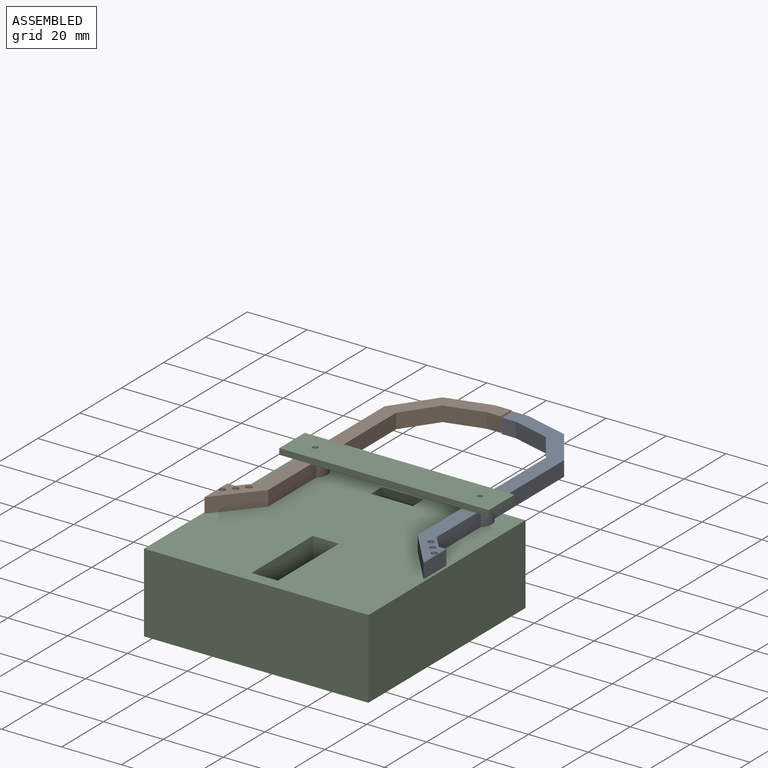
[diagram: assembled view]
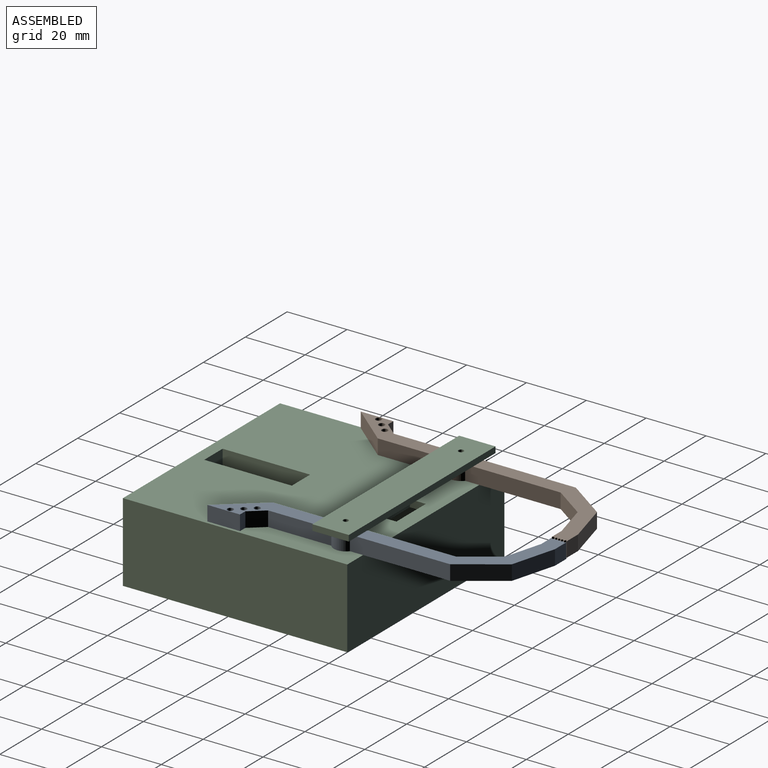
[diagram: assembled view, second angle]
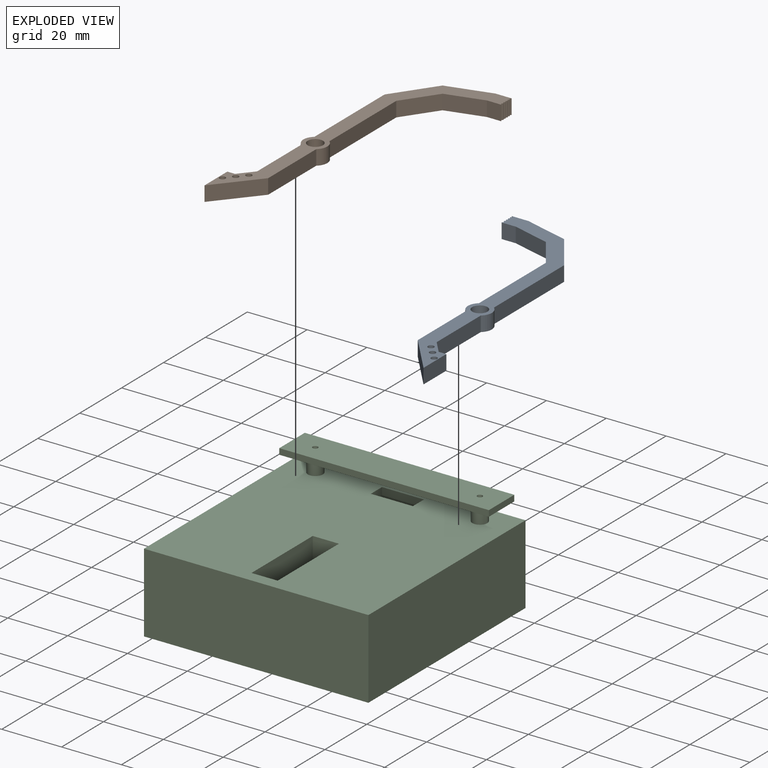
[diagram: exploded view]
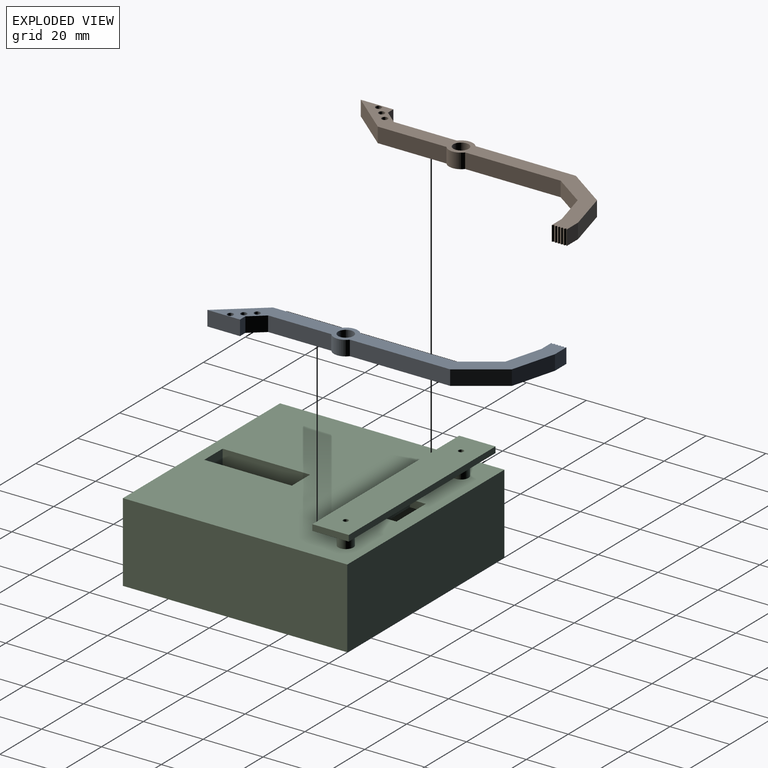
[diagram: exploded view, second angle]
ASSEMBLY  parts=3 mates=2
PART A: 38 faces, bbox 36.5x94.4x5 mm
  f0: plane 31.93x5mm, normal (-1,0,0), area 159.7mm2, adj f1,f34,f36,f37
  f1: cylinder r=4mm len=6.25mm, axis (0,0,-1), area 35.8mm2, adj f0,f2,f36,f37
  f2: plane 22.95x5mm, normal (-1,0,0), area 114.8mm2, adj f1,f3,f36,f37
  f3: plane 13.82x11.6mm, normal (-0.77,-0.64,0), area 90.2mm2, adj f2,f4,f36,f37
  f4: plane 10.9x5mm, normal (1,0,0), area 54.5mm2, adj f3,f5,f36,f37
  f5: plane 5x2.56mm, normal (0,1,0), area 12.8mm2, adj f4,f6,f36,f37
  f6: plane 5x4.79mm, normal (0.76,0.64,0), area 31.3mm2, adj f5,f7,f36,f37
  f7: plane 21.09x5mm, normal (1,0,0), area 105.4mm2, adj f6,f8,f36,f37
  f8: cylinder r=4mm len=6.25mm, axis (0,0,-1), area 35.8mm2, adj f7,f9,f36,f37
  f9: plane 33.51x5mm, normal (1,0,0), area 167.5mm2, adj f8,f10,f36,f37
  f10: plane 13.85x9.68mm, normal (0.82,0.57,0), area 84.5mm2, adj f9,f11,f36,f37
  f11: plane 14.82x5mm, normal (0.26,0.96,0), area 76.8mm2, adj f10,f12,f36,f37
  f12: plane 5.42x5mm, normal (0,1,0), area 27.1mm2, adj f11,f13,f36,f37
  f13: plane 5x0.07mm, normal (-1,0,0), area 0.3mm2, adj f12,f14,f36,f37
  f14: plane 5x0.49mm, normal (-0.65,-0.76,0), area 3.2mm2, adj f13,f15,f36,f37
  f15: plane 5x0.49mm, normal (-0.54,0.84,0), area 2.9mm2, adj f14,f16,f36,f37
  f16: plane 5x0.17mm, normal (-1,0,0), area 0.9mm2, adj f15,f17,f36,f37
  f17: plane 5x0.57mm, normal (-0.84,-0.54,0), area 3.4mm2, adj f16,f18,f36,f37
  f18: plane 5x0.36mm, normal (-0.54,0.84,0), area 2.2mm2, adj f17,f19,f36,f37
  f19: plane 5x0.17mm, normal (-1,0,0), area 0.9mm2, adj f18,f20,f36,f37
  f20: plane 5x0.57mm, normal (-0.84,-0.54,0), area 3.4mm2, adj f19,f21,f36,f37
  f21: plane 5x0.36mm, normal (-0.54,0.84,0), area 2.2mm2, adj f20,f22,f36,f37
  f22: plane 5x0.17mm, normal (-1,0,0), area 0.9mm2, adj f21,f23,f36,f37
  f23: plane 5x0.57mm, normal (-0.84,-0.54,0), area 3.4mm2, adj f22,f24,f36,f37
  f24: plane 5x0.36mm, normal (-0.54,0.84,0), area 2.2mm2, adj f23,f25,f36,f37
  f25: plane 5x0.17mm, normal (-1,0,0), area 0.9mm2, adj f24,f26,f36,f37
  f26: plane 5x0.57mm, normal (-0.84,-0.54,0), area 3.4mm2, adj f25,f27,f36,f37
  f27: plane 5x0.44mm, normal (-0.77,0.64,0), area 2.8mm2, adj f26,f28,f36,f37
  f28: plane 5x0.09mm, normal (-1,0,0), area 0.5mm2, adj f27,f29,f36,f37
  f29: plane 5x4.76mm, normal (0,-1,0), area 23.8mm2, adj f28,f30,f36,f37
  f30: plane 12.43x5mm, normal (-0.26,-0.96,0), area 64.4mm2, adj f29,f34,f36,f37
  f31: cylinder r=1mm len=5mm, axis (0,0,-1), area 31.4mm2, adj f36,f37
  f32: cylinder r=2.56mm len=5.13mm, axis (0,0,-1), area 80.5mm2, adj f36,f37
  f33: cylinder r=1mm len=5mm, axis (0,0,-1), area 31.4mm2, adj f36,f37
  f34: plane 11.08x7.74mm, normal (-0.82,-0.57,0), area 67.6mm2, adj f0,f30,f36,f37
  f35: cylinder r=1mm len=5mm, axis (0,0,-1), area 31.4mm2, adj f36,f37
  f36: plane 94.41x36.52mm, normal (0,0,1), area 534.4mm2, adj f0,f1,f2,f3,f4,f5,f6,f7
  f37: plane 94.41x36.52mm, normal (0,0,-1), area 534.4mm2, adj f0,f1,f2,f3,f4,f5,f6,f7
PART B: 38 faces, bbox 36.5x94.4x5 mm
  f0: plane 13.85x9.68mm, normal (-0.82,0.57,0), area 84.5mm2, adj f1,f34,f36,f37
  f1: plane 33.51x5mm, normal (-1,0,0), area 167.5mm2, adj f0,f2,f36,f37
  f2: cylinder r=4mm len=6.25mm, axis (0,0,-1), area 35.8mm2, adj f1,f3,f36,f37
  f3: plane 21.09x5mm, normal (-1,0,0), area 105.4mm2, adj f2,f4,f36,f37
  f4: plane 5x4.79mm, normal (-0.76,0.64,0), area 31.3mm2, adj f3,f5,f36,f37
  f5: plane 5x2.56mm, normal (0,1,0), area 12.8mm2, adj f4,f6,f36,f37
  f6: plane 10.9x5mm, normal (-1,0,0), area 54.5mm2, adj f5,f7,f36,f37
  f7: plane 13.82x11.6mm, normal (0.77,-0.64,0), area 90.2mm2, adj f6,f8,f36,f37
  f8: plane 22.95x5mm, normal (1,0,0), area 114.8mm2, adj f7,f9,f36,f37
  f9: cylinder r=4mm len=6.25mm, axis (0,0,-1), area 35.8mm2, adj f8,f10,f36,f37
  f10: plane 31.93x5mm, normal (1,0,0), area 159.7mm2, adj f9,f11,f36,f37
  f11: plane 11.08x7.74mm, normal (0.82,-0.57,0), area 67.6mm2, adj f10,f12,f36,f37
  f12: plane 12.43x5mm, normal (0.26,-0.96,0), area 64.4mm2, adj f11,f13,f36,f37
  f13: plane 5x4.76mm, normal (0,-1,0), area 23.8mm2, adj f12,f14,f36,f37
  f14: plane 5x0.09mm, normal (1,0,0), area 0.5mm2, adj f13,f15,f36,f37
  f15: plane 5x0.44mm, normal (0.77,0.64,0), area 2.8mm2, adj f14,f16,f36,f37
  f16: plane 5x0.57mm, normal (0.84,-0.54,0), area 3.4mm2, adj f15,f17,f36,f37
  f17: plane 5x0.17mm, normal (1,0,0), area 0.9mm2, adj f16,f18,f36,f37
  f18: plane 5x0.36mm, normal (0.54,0.84,0), area 2.2mm2, adj f17,f19,f36,f37
  f19: plane 5x0.57mm, normal (0.84,-0.54,0), area 3.4mm2, adj f18,f20,f36,f37
  f20: plane 5x0.17mm, normal (1,0,0), area 0.9mm2, adj f19,f21,f36,f37
  f21: plane 5x0.36mm, normal (0.54,0.84,0), area 2.2mm2, adj f20,f22,f36,f37
  f22: plane 5x0.57mm, normal (0.84,-0.54,0), area 3.4mm2, adj f21,f23,f36,f37
  f23: plane 5x0.17mm, normal (1,0,0), area 0.9mm2, adj f22,f24,f36,f37
  f24: plane 5x0.36mm, normal (0.54,0.84,0), area 2.2mm2, adj f23,f25,f36,f37
  f25: plane 5x0.57mm, normal (0.84,-0.54,0), area 3.4mm2, adj f24,f26,f36,f37
  f26: plane 5x0.17mm, normal (1,0,0), area 0.9mm2, adj f25,f27,f36,f37
  f27: plane 5x0.49mm, normal (0.54,0.84,0), area 2.9mm2, adj f26,f28,f36,f37
  f28: plane 5x0.49mm, normal (0.65,-0.76,0), area 3.2mm2, adj f27,f29,f36,f37
  f29: plane 5x0.07mm, normal (1,0,0), area 0.3mm2, adj f28,f30,f36,f37
  f30: plane 5.42x5mm, normal (0,1,0), area 27.1mm2, adj f29,f34,f36,f37
  f31: cylinder r=1mm len=5mm, axis (0,0,-1), area 31.4mm2, adj f36,f37
  f32: cylinder r=1mm len=5mm, axis (0,0,-1), area 31.4mm2, adj f36,f37
  f33: cylinder r=1mm len=5mm, axis (0,0,-1), area 31.4mm2, adj f36,f37
  f34: plane 14.82x5mm, normal (-0.26,0.96,0), area 76.8mm2, adj f0,f30,f36,f37
  f35: cylinder r=2.56mm len=5.13mm, axis (0,0,-1), area 80.5mm2, adj f36,f37
  f36: plane 94.41x36.52mm, normal (0,0,1), area 534.4mm2, adj f0,f1,f2,f3,f4,f5,f6,f7
  f37: plane 94.41x36.52mm, normal (0,0,-1), area 534.4mm2, adj f0,f1,f2,f3,f4,f5,f6,f7
PART C: 47 faces, bbox 75x75x34 mm
  f0: plane 75x26.5mm, normal (0,1,0), area 1987.5mm2, adj f14,f18,f19,f38
  f1: plane 75x26.5mm, normal (0,-1,0), area 1987.5mm2, adj f14,f18,f19,f38
  f2: plane 15x0.5mm, normal (1,0,0), area 7.5mm2, adj f7,f10,f29,f38
  f3: plane 15x0.5mm, normal (1,0,0), area 7.5mm2, adj f4,f12,f33,f38
  f4: plane 60x15mm, normal (0,1,0), area 900mm2, adj f3,f6,f33,f38
  f5: plane 15x0.5mm, normal (-1,0,0), area 7.5mm2, adj f7,f10,f29,f38
  f6: plane 15x0.5mm, normal (-1,0,0), area 7.5mm2, adj f4,f8,f33,f38
  f7: plane 60x15mm, normal (0,-1,0), area 900mm2, adj f2,f5,f29,f38
  f8: plane 28.13x24mm, normal (0,1,0), area 328.1mm2, adj f6,f9,f13,f30,f33,f38
  f9: plane 70x24mm, normal (-1,0,0), area 1680mm2, adj f8,f10,f13,f38
  f10: plane 70x24mm, normal (0,-1,0), area 780mm2, adj f2,f5,f9,f11,f13,f29,f38
  f11: plane 70x24mm, normal (1,0,0), area 1680mm2, adj f10,f12,f13,f38
  f12: plane 28.13x24mm, normal (0,1,0), area 328.1mm2, adj f3,f11,f13,f31,f33,f38
  f13: plane 70x70mm, normal (0,0,-1), area 4363.3mm2, adj f8,f9,f10,f11,f12,f30,f31,f32
  f14: plane 75x75mm, normal (0,0,1), area 5255.1mm2, adj f0,f1,f15,f16,f17,f18,f19,f20
  f15: plane 29.25x11.5mm, normal (-1,0,0), area 315.8mm2, adj f14,f17,f20,f23,f24,f25,f26,f33
  f16: plane 29.25x11.5mm, normal (1,0,0), area 315.8mm2, adj f14,f17,f20,f23,f24,f25,f26,f33
  f17: plane 9x8.75mm, normal (0,-1,0), area 78.7mm2, adj f14,f15,f16,f24
  f18: plane 75x26.5mm, normal (1,0,0), area 1987.5mm2, adj f0,f1,f14,f38
  f19: plane 75x26.5mm, normal (-1,0,0), area 1987.5mm2, adj f0,f1,f14,f38
  f20: plane 9x8.75mm, normal (0,1,0), area 78.7mm2, adj f14,f15,f16,f26
  f21: cylinder r=2.5mm len=5.5mm, axis (0,0,-1), area 86.4mm2, adj f14,f39
  f22: cylinder r=2.5mm len=5.5mm, axis (0,0,-1), area 86.4mm2, adj f14,f39
  f23: plane 8.75x2.5mm, normal (0,-1,0), area 21.9mm2, adj f15,f16,f24,f33
  f24: plane 8.75x4.13mm, normal (0,0,1), area 33.7mm2, adj f15,f16,f17,f23,f28
  f25: plane 8.75x2.5mm, normal (0,1,0), area 21.9mm2, adj f15,f16,f26,f33
  f26: plane 8.75x4.13mm, normal (0,0,1), area 33.7mm2, adj f15,f16,f20,f25,f27
  f27: cylinder r=0.88mm len=2.5mm, axis (0,0,1), area 13.7mm2, adj f26,f33
  f28: cylinder r=0.88mm len=2.5mm, axis (0,0,1), area 13.7mm2, adj f24,f33
  f29: plane 60x0.5mm, normal (0,0,-1), area 30mm2, adj f2,f5,f7,f10
  f30: plane 33.25x9mm, normal (1,0,0), area 299.2mm2, adj f8,f13,f32,f33
  f31: plane 33.25x9mm, normal (-1,0,0), area 299.2mm2, adj f12,f13,f32,f33
  f32: plane 13.75x9mm, normal (0,1,0), area 123.8mm2, adj f13,f30,f31,f33
  f33: plane 60x33.75mm, normal (0,0,-1), area 298.6mm2, adj f3,f4,f6,f8,f12,f15,f16,f23
  f34: plane 14.04x2.5mm, normal (0,1,0), area 35.1mm2, adj f13,f14,f35,f37
  f35: plane 5.32x2.5mm, normal (-1,0,0), area 13.3mm2, adj f13,f14,f34,f36
  f36: plane 14.04x2.5mm, normal (0,-1,0), area 35.1mm2, adj f13,f14,f35,f37
  f37: plane 5.32x2.5mm, normal (1,0,0), area 13.3mm2, adj f13,f14,f34,f36
  f38: plane 75x75mm, normal (0,0,-1), area 665mm2, adj f0,f1,f2,f3,f4,f5,f6,f7
  f39: plane 70.04x12.15mm, normal (0,0,-1), area 811.9mm2, adj f21,f22,f40,f41,f42,f43
  f40: plane 12.15x2mm, normal (-1,0,0), area 24.3mm2, adj f39,f41,f43,f44
  f41: plane 70.04x2mm, normal (0,-1,0), area 140.1mm2, adj f39,f40,f42,f44
  f42: plane 12.15x2mm, normal (1,0,0), area 24.3mm2, adj f39,f41,f43,f44
  f43: plane 70.04x2mm, normal (0,1,0), area 140.1mm2, adj f39,f40,f42,f44
  f44: plane 70.04x12.15mm, normal (0,0,1), area 846.4mm2, adj f40,f41,f42,f43,f45,f46
  f45: cylinder r=0.88mm len=10mm, axis (0,0,1), area 55mm2, adj f13,f44
  f46: cylinder r=0.88mm len=10mm, axis (0,0,1), area 55mm2, adj f13,f44
PLACE A t=(-2.39,5.24,26.64)mm
PLACE B t=(-2.39,5.24,26.89)mm
PLACE C t=(-2.39,5.24,26.64)mm fixed
MATE revolute B.f2 <-> C.f21  axis (0,0,1) through (-29.89,35.24,61.89)mm
MATE revolute C.f22 <-> A.f1  axis (0,0,1) through (25.11,35.24,56.64)mm
